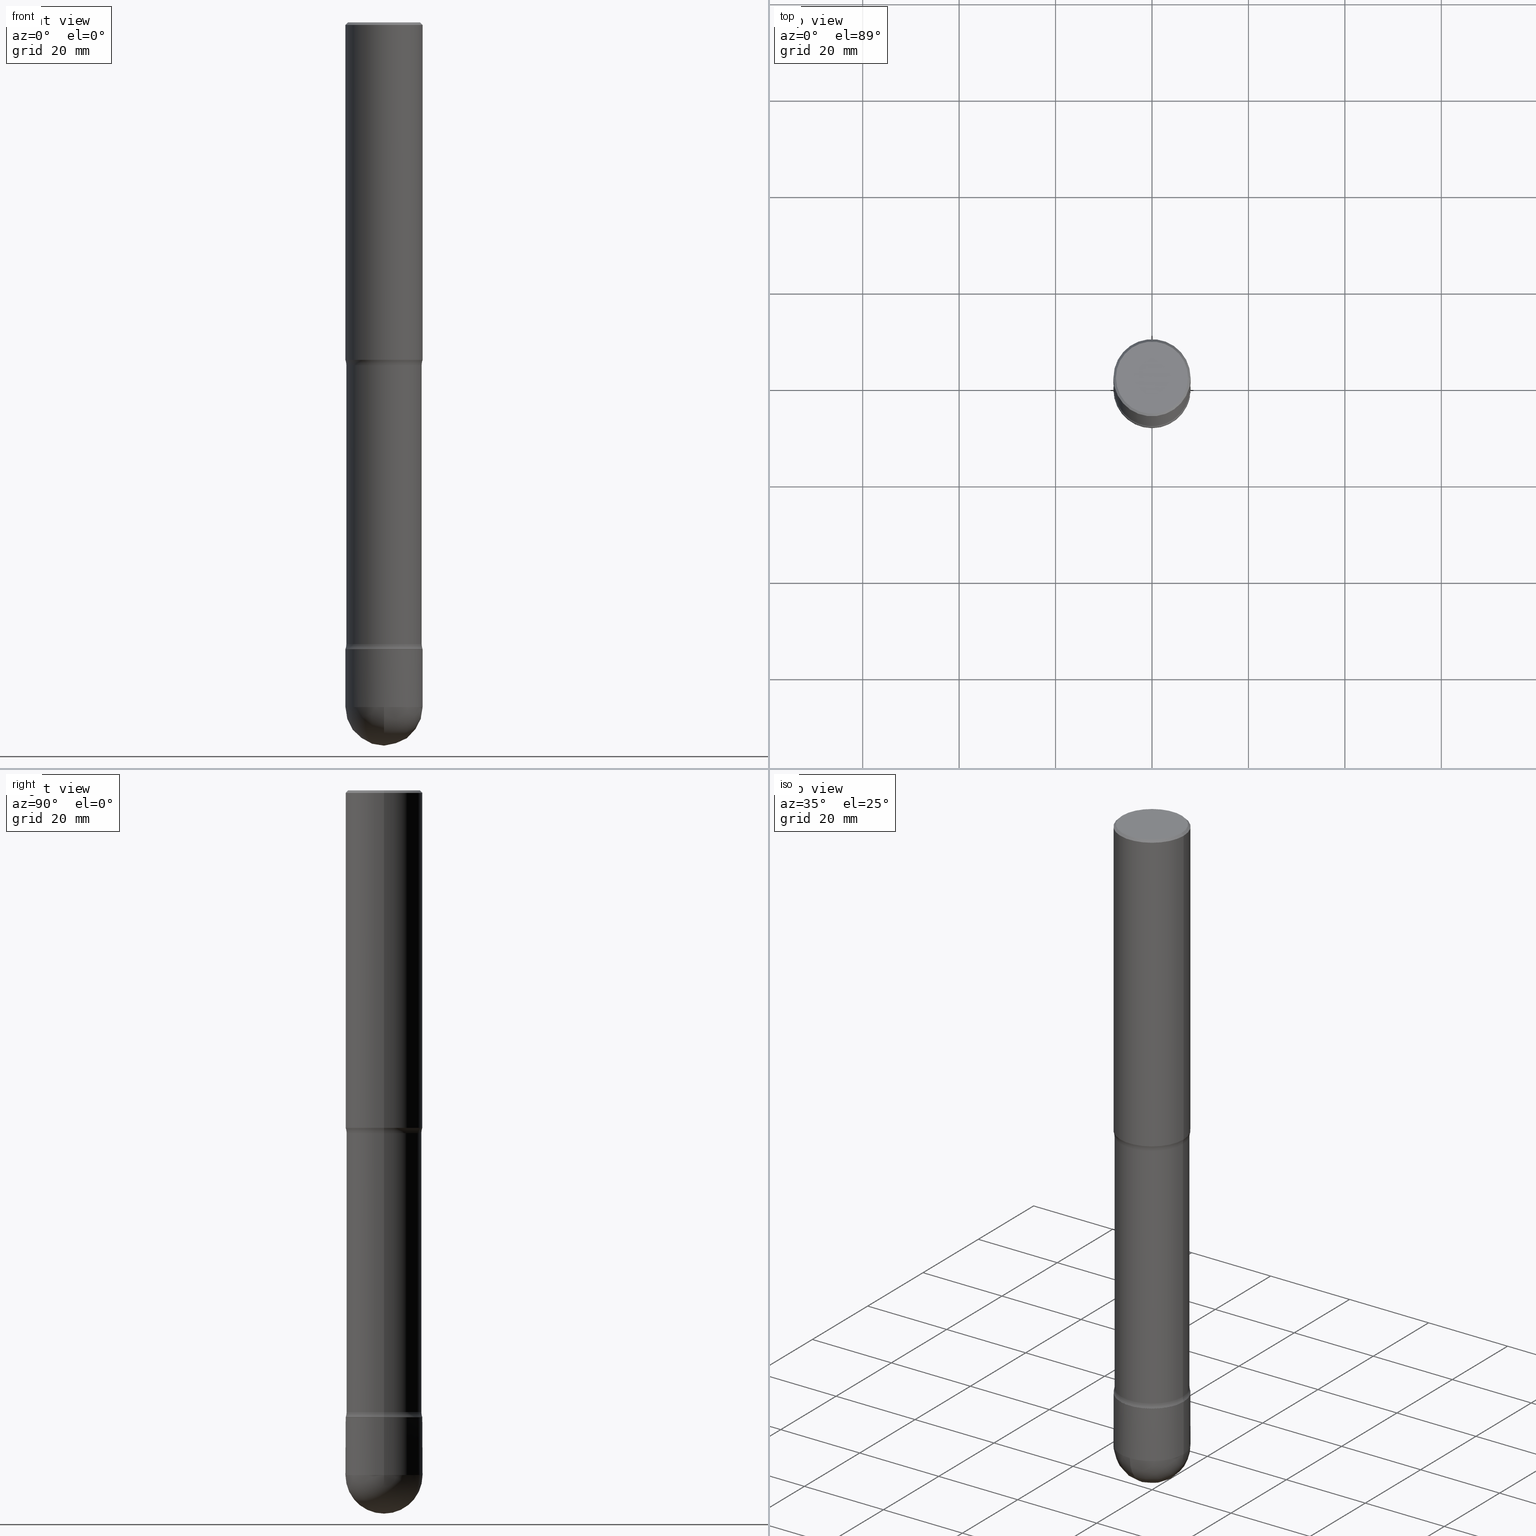
[diagram: canonical four-view strip — front | top / right | iso, engineering-drawing reading convention]
A machine part, canonical four-view strip (front | top / right | iso — engineering-drawing reading convention). The complete STEP part file that produces these views, byte-faithful:
ISO-10303-21;
HEADER;
FILE_DESCRIPTION (( 'STEP AP203' ),
    '1' );
FILE_NAME ('44585.STEP',
    '2024-02-29T19:25:29',
    ( '' ),
    ( '' ),
    'SwSTEP 2.0',
    'SolidWorks 2023',
    '' );
FILE_SCHEMA (( 'CONFIG_CONTROL_DESIGN' ));
ENDSEC;

DATA;
#1 = VERTEX_POINT ( 'NONE', #215 ) ;
#2 = DIRECTION ( 'NONE',  ( -1.000000000000000000, 6.982962677686265922E-15, -4.876176775795935793E-29 ) ) ;
#3 = EDGE_CURVE ( 'NONE', #391, #229, #532, .T. ) ;
#4 = DIRECTION ( 'NONE',  ( -1.000000000000000000, 6.982962677686266711E-15, 0.000000000000000000 ) ) ;
#5 = CIRCLE ( 'NONE', #354, 0.3148173271255955141 ) ;
#6 = CARTESIAN_POINT ( 'NONE',  ( 4.890937612370354609E-31, -6.982962677686407473E-17, -0.02000000000000033348 ) ) ;
#7 = ADVANCED_FACE ( 'NONE', ( #566 ), #486, .T. ) ;
#8 = AXIS2_PLACEMENT_3D ( 'NONE', #117, #564, #245 ) ;
#9 = AXIS2_PLACEMENT_3D ( 'NONE', #412, #377, #283 ) ;
#10 = DIRECTION ( 'NONE',  ( 1.000000000000000000, 0.000000000000000000, 0.000000000000000000 ) ) ;
#11 = PRODUCT_DEFINITION ( 'UNKNOWN', '', #420, #179 ) ;
#12 = ORIENTED_EDGE ( 'NONE', *, *, #88, .T. ) ;
#13 = APPROVAL_DATE_TIME ( #405, #181 ) ;
#14 = ORIENTED_EDGE ( 'NONE', *, *, #42, .F. ) ;
#15 = DIRECTION ( 'NONE',  ( -1.000000000000000000, 6.982962677686267499E-15, -4.876176775795936353E-29 ) ) ;
#16 = CIRCLE ( 'NONE', #496, 0.3144499999999990081 ) ;
#17 = CIRCLE ( 'NONE', #182, 0.3149499999999990640 ) ;
#18 = PRODUCT_DEFINITION_SHAPE ( 'NONE', 'NONE',  #11 ) ;
#19 = SECURITY_CLASSIFICATION ( '', '', #90 ) ;
#20 = ORIENTED_EDGE ( 'NONE', *, *, #273, .T. ) ;
#21 = CARTESIAN_POINT ( 'NONE',  ( -0.3144499999999990081, -1.563350274172963988E-14, -5.118099999999999206 ) ) ;
#22 = CARTESIAN_POINT ( 'NONE',  ( -0.3074499999999993349, -1.572283876507846399E-14, -5.118099999999999206 ) ) ;
#23 = EDGE_CURVE ( 'NONE', #515, #36, #142, .T. ) ;
#24 = ORIENTED_EDGE ( 'NONE', *, *, #488, .T. ) ;
#25 = LINE ( 'NONE', #383, #30 ) ;
#26 = ORIENTED_EDGE ( 'NONE', *, *, #481, .F. ) ;
#27 = CARTESIAN_POINT ( 'NONE',  ( 0.3074499999999993349, -1.997901074974795605E-14, -5.118099999999999206 ) ) ;
#28 = DIRECTION ( 'NONE',  ( 2.445468806185136597E-29, -3.491481338843145583E-15, -1.000000000000000000 ) ) ;
#29 = VECTOR ( 'NONE', #506, 39.37007874015748143 ) ;
#30 = VECTOR ( 'NONE', #328, 39.37007874015748143 ) ;
#31 = ORIENTED_EDGE ( 'NONE', *, *, #439, .T. ) ;
#32 = CARTESIAN_POINT ( 'NONE',  ( 6.843758914944387642E-29, -9.771073946490062515E-15, -2.798546805273080640 ) ) ;
#33 = ADVANCED_FACE ( 'NONE', ( #562 ), #85, .F. ) ;
#34 = CARTESIAN_POINT ( 'NONE',  ( 0.3149499999999990085, -2.089380991493860711E-14, -5.590549999999999464 ) ) ;
#35 = CARTESIAN_POINT ( 'NONE',  ( 6.739467482965618232E-29, -9.622173421717824390E-15, -2.755900000000000016 ) ) ;
#36 = VERTEX_POINT ( 'NONE', #352 ) ;
#37 = CARTESIAN_POINT ( 'NONE',  ( 1.251615389693614574E-28, -1.786975064033310244E-14, -5.118099999999999206 ) ) ;
#38 = DIRECTION ( 'NONE',  ( -2.445468806185136597E-29, 3.491481338843145583E-15, 1.000000000000000000 ) ) ;
#39 = FACE_OUTER_BOUND ( 'NONE', #111, .T. ) ;
#40 = ORIENTED_EDGE ( 'NONE', *, *, #138, .F. ) ;
#41 = ADVANCED_FACE ( 'NONE', ( #440 ), #274, .T. ) ;
#42 = EDGE_CURVE ( 'NONE', #266, #51, #345, .T. ) ;
#43 = CARTESIAN_POINT ( 'NONE',  ( 6.843758914944387642E-29, -9.771073946490062515E-15, -2.798546805273080640 ) ) ;
#44 = CARTESIAN_POINT ( 'NONE',  ( -0.4324499999999873445, -6.751291736524724343E-15, -2.798546805273080640 ) ) ;
#45 = ORIENTED_EDGE ( 'NONE', *, *, #218, .T. ) ;
#46 = TOROIDAL_SURFACE ( 'NONE', #542, 0.4324500000000130462, 0.1250000000000136280 ) ;
#47 = AXIS2_PLACEMENT_3D ( 'NONE', #384, #244, #95 ) ;
#48 = CARTESIAN_POINT ( 'NONE',  ( 1.241186246495737521E-28, -1.772085011556086274E-14, -5.075453194726918582 ) ) ;
#49 = ORIENTED_EDGE ( 'NONE', *, *, #70, .F. ) ;
#50 = EDGE_CURVE ( 'NONE', #518, #394, #399, .T. ) ;
#51 = VERTEX_POINT ( 'NONE', #424 ) ;
#52 = CYLINDRICAL_SURFACE ( 'NONE', #221, 0.3074499999999993349 ) ;
#53 = ORIENTED_EDGE ( 'NONE', *, *, #500, .T. ) ;
#54 = AXIS2_PLACEMENT_3D ( 'NONE', #395, #392, #349 ) ;
#55 = ADVANCED_FACE ( 'NONE', ( #203 ), #46, .F. ) ;
#56 = ADVANCED_FACE ( 'NONE', ( #259 ), #311, .T. ) ;
#57 = EDGE_CURVE ( 'NONE', #36, #515, #312, .T. ) ;
#58 = CALENDAR_DATE ( 2024, 29, 2 ) ;
#59 = CC_DESIGN_DATE_AND_TIME_ASSIGNMENT ( #490, #108, ( #11 ) ) ;
#60 = CIRCLE ( 'NONE', #9, 0.3149499999999997302 ) ;
#61 = CIRCLE ( 'NONE', #47, 0.3148173271255955141 ) ;
#62 = EDGE_LOOP ( 'NONE', ( #14, #246, #217, #447 ) ) ;
#63 = APPROVAL_STATUS ( 'not_yet_approved' ) ;
#64 = EDGE_CURVE ( 'NONE', #107, #344, #386, .T. ) ;
#65 = ORIENTED_EDGE ( 'NONE', *, *, #77, .F. ) ;
#66 = COORDINATED_UNIVERSAL_TIME_OFFSET ( 5, 0, .BEHIND. ) ;
#67 = FACE_OUTER_BOUND ( 'NONE', #428, .T. ) ;
#68 = ORIENTED_EDGE ( 'NONE', *, *, #131, .F. ) ;
#69 = DIRECTION ( 'NONE',  ( -1.000000000000000000, 6.982962677686266711E-15, -4.883557194083112901E-29 ) ) ;
#70 = EDGE_CURVE ( 'NONE', #391, #515, #453, .T. ) ;
#71 = AXIS2_PLACEMENT_3D ( 'NONE', #320, #222, #279 ) ;
#72 = DIRECTION ( 'NONE',  ( -1.000000000000000000, 6.860497997771527618E-15, 0.000000000000000000 ) ) ;
#73 = APPROVAL_STATUS ( 'not_yet_approved' ) ;
#74 = DIRECTION ( 'NONE',  ( -1.000000000000000000, 6.982962677686267499E-15, -4.883557194083113462E-29 ) ) ;
#75 = CARTESIAN_POINT ( 'NONE',  ( 0.3149499999999998967, -2.003046448473124620E-14, -5.118099999999999206 ) ) ;
#76 = ORIENTED_EDGE ( 'NONE', *, *, #104, .T. ) ;
#77 = EDGE_CURVE ( 'NONE', #322, #370, #359, .T. ) ;
#78 = FACE_OUTER_BOUND ( 'NONE', #336, .T. ) ;
#79 = CARTESIAN_POINT ( 'NONE',  ( 0.3149500000000000632, -7.006715368645486812E-15, -2.755900000000000016 ) ) ;
#80 = DIRECTION ( 'NONE',  ( 1.000000000000000000, -6.982962677686266711E-15, 4.876176775795935793E-29 ) ) ;
#81 = DIRECTION ( 'NONE',  ( -1.000000000000000000, 6.860497997771538662E-15, 0.000000000000000000 ) ) ;
#82 = VECTOR ( 'NONE', #173, 39.37007874015748143 ) ;
#83 = AXIS2_PLACEMENT_3D ( 'NONE', #499, #287, #456 ) ;
#84 = ORIENTED_EDGE ( 'NONE', *, *, #526, .F. ) ;
#85 = PLANE ( 'NONE',  #417 ) ;
#86 = CARTESIAN_POINT ( 'NONE',  ( 0.3149499999999997302, -2.230543471175006266E-15, -0.02000000000000033348 ) ) ;
#87 = LINE ( 'NONE', #252, #400 ) ;
#88 = EDGE_CURVE ( 'NONE', #370, #284, #468, .T. ) ;
#89 = EDGE_LOOP ( 'NONE', ( #191, #435, #497, #65 ) ) ;
#90 = SECURITY_CLASSIFICATION_LEVEL ( 'unclassified' ) ;
#91 =( NAMED_UNIT ( * ) SI_UNIT ( $, .STERADIAN. ) SOLID_ANGLE_UNIT ( ) );
#92 = DIRECTION ( 'NONE',  ( 2.445468806185136597E-29, -3.491481338843145583E-15, -1.000000000000000000 ) ) ;
#93 = ORIENTED_EDGE ( 'NONE', *, *, #334, .F. ) ;
#94 = CARTESIAN_POINT ( 'NONE',  ( 4.890937612370354609E-31, -6.982962677686407473E-17, -0.02000000000000033348 ) ) ;
#95 = DIRECTION ( 'NONE',  ( -1.000000000000000000, 6.982962677686265922E-15, 0.000000000000000000 ) ) ;
#96 = CYLINDRICAL_SURFACE ( 'NONE', #106, 0.3074499999999993349 ) ;
#97 = EDGE_LOOP ( 'NONE', ( #410, #503, #26, #176 ) ) ;
#98 = CLOSED_SHELL ( 'NONE', ( #321, #195, #235, #357, #33 ) ) ;
#99 = AXIS2_PLACEMENT_3D ( 'NONE', #546, #69, #502 ) ;
#100 = ORIENTED_EDGE ( 'NONE', *, *, #149, .F. ) ;
#101 = EDGE_CURVE ( 'NONE', #394, #476, #199, .T. ) ;
#102 = DIRECTION ( 'NONE',  ( 2.445468806185136597E-29, -3.491481338843145583E-15, -1.000000000000000000 ) ) ;
#103 = APPLICATION_PROTOCOL_DEFINITION ( 'international standard', 'config_control_design', 1994, #362 ) ;
#104 = EDGE_CURVE ( 'NONE', #284, #476, #432, .T. ) ;
#105 = PERSON_AND_ORGANIZATION_ROLE ( 'design_owner' ) ;
#106 = AXIS2_PLACEMENT_3D ( 'NONE', #119, #292, #196 ) ;
#107 = VERTEX_POINT ( 'NONE', #459 ) ;
#108 = DATE_TIME_ROLE ( 'creation_date' ) ;
#109 = CC_DESIGN_PERSON_AND_ORGANIZATION_ASSIGNMENT ( #285, #371, ( #420 ) ) ;
#110 = CARTESIAN_POINT ( 'NONE',  ( 0.4324500000000130462, -2.068767247469725245E-14, -5.075453194726918582 ) ) ;
#111 = EDGE_LOOP ( 'NONE', ( #387, #549 ) ) ;
#112 = EDGE_CURVE ( 'NONE', #194, #266, #16, .T. ) ;
#113 = EDGE_CURVE ( 'NONE', #344, #515, #517, .T. ) ;
#114 = CIRCLE ( 'NONE', #445, 0.3149499999999997302 ) ;
#115 = ORIENTED_EDGE ( 'NONE', *, *, #64, .F. ) ;
#116 = SPHERICAL_SURFACE ( 'NONE', #99, 0.3149499999999997302 ) ;
#117 = CARTESIAN_POINT ( 'NONE',  ( 1.251615389693614574E-28, -1.786975064033310244E-14, -5.118099999999999206 ) ) ;
#118 = EDGE_LOOP ( 'NONE', ( #170, #233, #277, #40 ) ) ;
#119 = CARTESIAN_POINT ( 'NONE',  ( 1.251615389693614574E-28, -1.786975064033310244E-14, -5.118099999999999206 ) ) ;
#120 = CARTESIAN_POINT ( 'NONE',  ( 0.000000000000000000, 0.000000000000000000, 0.000000000000000000 ) ) ;
#121 = VERTEX_POINT ( 'NONE', #164 ) ;
#122 = DIRECTION ( 'NONE',  ( -1.000000000000000000, 6.982962677686262766E-15, 0.000000000000000000 ) ) ;
#123 = DIRECTION ( 'NONE',  ( 1.000000000000000000, -6.982962677686261977E-15, 0.000000000000000000 ) ) ;
#124 = AXIS2_PLACEMENT_3D ( 'NONE', #463, #347, #81 ) ;
#125 = AXIS2_PLACEMENT_3D ( 'NONE', #159, #350, #163 ) ;
#126 = ORIENTED_EDGE ( 'NONE', *, *, #50, .F. ) ;
#127 = PLANE ( 'NONE',  #411 ) ;
#128 = DIRECTION ( 'NONE',  ( -1.000000000000000000, 6.982962677686265922E-15, -4.876176775795935793E-29 ) ) ;
#129 = ORIENTED_EDGE ( 'NONE', *, *, #101, .T. ) ;
#130 = DIRECTION ( 'NONE',  ( -2.445468806185136597E-29, 3.491481338843145583E-15, 1.000000000000000000 ) ) ;
#131 = EDGE_CURVE ( 'NONE', #236, #36, #415, .T. ) ;
#132 = DIRECTION ( 'NONE',  ( 1.000000000000000000, -6.982962677686266711E-15, 0.000000000000000000 ) ) ;
#133 = DIRECTION ( 'NONE',  ( -1.000000000000000000, 6.982962677686265922E-15, 0.000000000000000000 ) ) ;
#134 = EDGE_LOOP ( 'NONE', ( #451, #307, #213, #129, #565 ) ) ;
#135 = CARTESIAN_POINT ( 'NONE',  ( 1.251615389693614574E-28, -1.786975064033310244E-14, -5.118099999999999206 ) ) ;
#136 = ORIENTED_EDGE ( 'NONE', *, *, #23, .F. ) ;
#137 = LOCAL_TIME ( 14, 25, 29.00000000000000000, #66 ) ;
#138 = EDGE_CURVE ( 'NONE', #194, #431, #87, .T. ) ;
#139 = DIRECTION ( 'NONE',  ( 2.445468806185136597E-29, -3.491481338843145583E-15, -1.000000000000000000 ) ) ;
#140 = EDGE_CURVE ( 'NONE', #121, #322, #114, .T. ) ;
#141 = PERSON_AND_ORGANIZATION_ROLE ( 'creator' ) ;
#142 = CIRCLE ( 'NONE', #54, 0.3149500000000000632 ) ;
#143 = VECTOR ( 'NONE', #289, 39.37007874015748143 ) ;
#144 = CARTESIAN_POINT ( 'NONE',  ( -0.2949499999999996569, 2.059624841783562091E-15, -1.438228340021009676E-29 ) ) ;
#145 = ADVANCED_FACE ( 'NONE', ( #39 ), #256, .T. ) ;
#146 = CARTESIAN_POINT ( 'NONE',  ( 0.3149499999999990640, -2.006903473567038758E-14, -5.118099999999999206 ) ) ;
#147 = CONICAL_SURFACE ( 'NONE', #243, 0.3144499999999990081, 0.7853981633988427191 ) ;
#148 = LOCAL_TIME ( 14, 25, 29.00000000000000000, #544 ) ;
#149 = EDGE_CURVE ( 'NONE', #431, #51, #5, .T. ) ;
#150 = CARTESIAN_POINT ( 'NONE',  ( 1.364458217214061005E-28, -1.955787124980869236E-14, -5.590549999999999464 ) ) ;
#151 = ADVANCED_FACE ( 'NONE', ( #475 ), #96, .T. ) ;
#152 = APPROVAL_ROLE ( '' ) ;
#153 = DIRECTION ( 'NONE',  ( -2.445468806185136597E-29, 3.491481338843145583E-15, 1.000000000000000000 ) ) ;
#154 = VECTOR ( 'NONE', #381, 39.37007874015748143 ) ;
#155 = CARTESIAN_POINT ( 'NONE',  ( 1.251615389693614574E-28, -1.786975064033310244E-14, -5.118099999999999206 ) ) ;
#156 = ORIENTED_EDGE ( 'NONE', *, *, #57, .T. ) ;
#157 = CALENDAR_DATE ( 2024, 29, 2 ) ;
#158 = DIRECTION ( 'NONE',  ( -2.445468806185136597E-29, 3.491481338843145583E-15, 1.000000000000000000 ) ) ;
#159 = CARTESIAN_POINT ( 'NONE',  ( 1.251615389693614574E-28, -1.786975064033310244E-14, -5.118099999999999206 ) ) ;
#160 = DIRECTION ( 'NONE',  ( 2.445468806185136597E-29, -3.491481338843145583E-15, -1.000000000000000000 ) ) ;
#161 = ORIENTED_EDGE ( 'NONE', *, *, #206, .T. ) ;
#162 = CARTESIAN_POINT ( 'NONE',  ( 0.000000000000000000, 0.000000000000000000, 0.000000000000000000 ) ) ;
#163 = DIRECTION ( 'NONE',  ( -1.000000000000000000, 6.982962677686265922E-15, 0.000000000000000000 ) ) ;
#164 = CARTESIAN_POINT ( 'NONE',  ( 1.442824930378747100E-28, -2.063822817200776423E-14, -5.905499999999998195 ) ) ;
#165 = EDGE_LOOP ( 'NONE', ( #200, #76 ) ) ;
#166 = FACE_OUTER_BOUND ( 'NONE', #474, .T. ) ;
#167 = DIRECTION ( 'NONE',  ( -2.445468806185136877E-29, 3.491481338843145188E-15, 1.000000000000000000 ) ) ;
#168 = AXIS2_PLACEMENT_3D ( 'NONE', #35, #28, #309 ) ;
#169 = CIRCLE ( 'NONE', #442, 0.3149499999999990085 ) ;
#170 = ORIENTED_EDGE ( 'NONE', *, *, #552, .F. ) ;
#171 = DIRECTION ( 'NONE',  ( -1.000000000000000000, 6.982962677686268288E-15, 0.000000000000000000 ) ) ;
#172 = DIRECTION ( 'NONE',  ( -2.438088387897960049E-29, 3.491481338843145188E-15, 1.000000000000000000 ) ) ;
#173 = DIRECTION ( 'NONE',  ( 0.7071067811865426878, -7.319954787623238690E-15, -0.7071067811865523467 ) ) ;
#174 = EDGE_LOOP ( 'NONE', ( #375, #324, #31, #20 ) ) ;
#175 = DIRECTION ( 'NONE',  ( -1.000000000000000000, 6.982962677686265922E-15, -4.883557194083112340E-29 ) ) ;
#176 = ORIENTED_EDGE ( 'NONE', *, *, #316, .F. ) ;
#177 = EDGE_CURVE ( 'NONE', #476, #284, #17, .T. ) ;
#178 = AXIS2_PLACEMENT_3D ( 'NONE', #201, #538, #413 ) ;
#179 = DESIGN_CONTEXT ( 'detailed design', #239, 'design' ) ;
#180 = MANIFOLD_SOLID_BREP ( 'Body-Move/Copy2[2]', #441 ) ;
#181 = APPROVAL ( #63, 'UNSPECIFIED' ) ;
#182 = AXIS2_PLACEMENT_3D ( 'NONE', #373, #158, #295 ) ;
#183 = CARTESIAN_POINT ( 'NONE',  ( 6.843758914944387642E-29, -9.771073946490062515E-15, -2.798546805273080640 ) ) ;
#184 = CALENDAR_DATE ( 2024, 29, 2 ) ;
#185 = LINE ( 'NONE', #22, #143 ) ;
#186 = ADVANCED_FACE ( 'NONE', ( #540 ), #330, .F. ) ;
#187 = DIRECTION ( 'NONE',  ( -1.000000000000000000, 6.982962677686267499E-15, -4.876176775795936353E-29 ) ) ;
#188 = AXIS2_PLACEMENT_3D ( 'NONE', #339, #505, #122 ) ;
#189 = ORIENTED_EDGE ( 'NONE', *, *, #210, .F. ) ;
#190 = CALENDAR_DATE ( 2024, 29, 2 ) ;
#191 = ORIENTED_EDGE ( 'NONE', *, *, #140, .F. ) ;
#192 = DATE_AND_TIME ( #157, #148 ) ;
#193 = DIRECTION ( 'NONE',  ( 1.000000000000000000, -6.982962677686268288E-15, 0.000000000000000000 ) ) ;
#194 = VERTEX_POINT ( 'NONE', #367 ) ;
#195 = ADVANCED_FACE ( 'NONE', ( #414 ), #536, .T. ) ;
#196 = DIRECTION ( 'NONE',  ( -1.000000000000000000, 6.982962677686269077E-15, 0.000000000000000000 ) ) ;
#197 = CARTESIAN_POINT ( 'NONE',  ( 0.3074499999999996125, -1.585522214044031702E-14, -5.075453194726919470 ) ) ;
#198 = AXIS2_PLACEMENT_3D ( 'NONE', #150, #419, #551 ) ;
#199 = LINE ( 'NONE', #293, #267 ) ;
#200 = ORIENTED_EDGE ( 'NONE', *, *, #177, .T. ) ;
#201 = CARTESIAN_POINT ( 'NONE',  ( 1.241186246495737745E-28, -1.772085011556086905E-14, -5.075453194726919470 ) ) ;
#202 = ORIENTED_EDGE ( 'NONE', *, *, #526, .T. ) ;
#203 = FACE_OUTER_BOUND ( 'NONE', #174, .T. ) ;
#204 =( CONVERSION_BASED_UNIT ( 'INCH', #433 ) LENGTH_UNIT ( ) NAMED_UNIT ( #436 ) );
#205 = DIRECTION ( 'NONE',  ( -6.982962677686266711E-15, -1.000000000000000000, 3.491481338843145583E-15 ) ) ;
#206 = EDGE_CURVE ( 'NONE', #107, #469, #487, .T. ) ;
#207 = CARTESIAN_POINT ( 'NONE',  ( 2.195792613998564404E-15, 0.3144499999999811335, -5.118100000000000094 ) ) ;
#208 = ORIENTED_EDGE ( 'NONE', *, *, #177, .F. ) ;
#209 = DIRECTION ( 'NONE',  ( -1.000000000000000000, 6.982962677686266711E-15, 0.000000000000000000 ) ) ;
#210 = EDGE_CURVE ( 'NONE', #469, #107, #498, .T. ) ;
#211 = FACE_OUTER_BOUND ( 'NONE', #134, .T. ) ;
#212 = AXIS2_PLACEMENT_3D ( 'NONE', #512, #519, #338 ) ;
#213 = ORIENTED_EDGE ( 'NONE', *, *, #50, .T. ) ;
#214 = AXIS2_PLACEMENT_3D ( 'NONE', #325, #443, #10 ) ;
#215 = CARTESIAN_POINT ( 'NONE',  ( -0.3074499999999996125, -1.557393824030622744E-14, -5.075453194726919470 ) ) ;
#216 = CARTESIAN_POINT ( 'NONE',  ( 1.251615389693614574E-28, -1.786975064033310244E-14, -5.118099999999999206 ) ) ;
#217 = ORIENTED_EDGE ( 'NONE', *, *, #138, .T. ) ;
#218 = EDGE_CURVE ( 'NONE', #431, #522, #418, .T. ) ;
#219 = DIRECTION ( 'NONE',  ( 2.445468806185136597E-29, -3.491481338843145583E-15, -1.000000000000000000 ) ) ;
#220 = AXIS2_PLACEMENT_3D ( 'NONE', #43, #264, #171 ) ;
#221 = AXIS2_PLACEMENT_3D ( 'NONE', #216, #563, #260 ) ;
#222 = DIRECTION ( 'NONE',  ( -1.000000000000000000, 7.105427357601001070E-15, -4.926315508542082329E-29 ) ) ;
#223 = EDGE_CURVE ( 'NONE', #344, #236, #60, .T. ) ;
#224 = APPROVAL_STATUS ( 'not_yet_approved' ) ;
#225 = AXIS2_PLACEMENT_3D ( 'NONE', #491, #333, #15 ) ;
#226 = EDGE_CURVE ( 'NONE', #391, #522, #337, .T. ) ;
#227 = ORIENTED_EDGE ( 'NONE', *, *, #113, .F. ) ;
#228 = DIRECTION ( 'NONE',  ( 2.445468806185136597E-29, -3.491481338843145583E-15, -1.000000000000000000 ) ) ;
#229 = VERTEX_POINT ( 'NONE', #452 ) ;
#230 = APPROVAL_ROLE ( '' ) ;
#231 = CIRCLE ( 'NONE', #561, 0.3074499999999991129 ) ;
#232 = AXIS2_PLACEMENT_3D ( 'NONE', #250, #421, #458 ) ;
#233 = ORIENTED_EDGE ( 'NONE', *, *, #42, .T. ) ;
#234 = CARTESIAN_POINT ( 'NONE',  ( -0.3149499999999997302, 2.129454468560423812E-15, -0.02000000000000033348 ) ) ;
#235 = ADVANCED_FACE ( 'NONE', ( #329 ), #116, .T. ) ;
#236 = VERTEX_POINT ( 'NONE', #234 ) ;
#237 = DATE_AND_TIME ( #494, #355 ) ;
#238 = DIRECTION ( 'NONE',  ( 2.445468806185136877E-29, -3.491481338843145188E-15, -1.000000000000000000 ) ) ;
#239 = APPLICATION_CONTEXT ( 'configuration controlled 3d designs of mechanical parts and assemblies' ) ;
#240 = ORIENTED_EDGE ( 'NONE', *, *, #488, .F. ) ;
#241 = CARTESIAN_POINT ( 'NONE',  ( 1.251615389693614574E-28, -1.786975064033310244E-14, -5.118099999999999206 ) ) ;
#242 = VECTOR ( 'NONE', #356, 39.37007874015748854 ) ;
#243 = AXIS2_PLACEMENT_3D ( 'NONE', #241, #153, #193 ) ;
#244 = DIRECTION ( 'NONE',  ( 2.445468806185136597E-29, -3.491481338843145583E-15, -1.000000000000000000 ) ) ;
#245 = DIRECTION ( 'NONE',  ( 1.000000000000000000, -6.982962677686273021E-15, 0.000000000000000000 ) ) ;
#246 = ORIENTED_EDGE ( 'NONE', *, *, #112, .F. ) ;
#247 = DATE_AND_TIME ( #190, #446 ) ;
#248 = CARTESIAN_POINT ( 'NONE',  ( 1.367151563441831346E-28, -1.951930099886954466E-14, -5.590549999999999464 ) ) ;
#249 = CC_DESIGN_PERSON_AND_ORGANIZATION_ASSIGNMENT ( #529, #105, ( #280 ) ) ;
#250 = CARTESIAN_POINT ( 'NONE',  ( 1.251615389693614574E-28, -1.786975064033310244E-14, -5.118099999999999206 ) ) ;
#251 = CYLINDRICAL_SURFACE ( 'NONE', #533, 0.3149499999999990640 ) ;
#252 = CARTESIAN_POINT ( 'NONE',  ( 0.3144499999999990081, -2.006554325433154299E-14, -5.118099999999999206 ) ) ;
#253 = ORIENTED_EDGE ( 'NONE', *, *, #409, .F. ) ;
#254 = DIRECTION ( 'NONE',  ( -2.445468806185136597E-29, 3.491481338843145583E-15, 1.000000000000000000 ) ) ;
#255 = CARTESIAN_POINT ( 'NONE',  ( 2.199284095337421611E-15, 0.3149499999999798017, -5.590550000000000352 ) ) ;
#256 = PLANE ( 'NONE',  #378 ) ;
#257 = APPROVAL_DATE_TIME ( #237, #471 ) ;
#258 = ORIENTED_EDGE ( 'NONE', *, *, #206, .F. ) ;
#259 = FACE_OUTER_BOUND ( 'NONE', #310, .T. ) ;
#260 = DIRECTION ( 'NONE',  ( -1.000000000000000000, 6.982962677686269077E-15, 0.000000000000000000 ) ) ;
#261 = CARTESIAN_POINT ( 'NONE',  ( 1.364458217214061005E-28, -1.955787124980869236E-14, -5.590549999999999464 ) ) ;
#262 = AXIS2_PLACEMENT_3D ( 'NONE', #162, #457, #187 ) ;
#263 = ORIENTED_EDGE ( 'NONE', *, *, #70, .T. ) ;
#264 = DIRECTION ( 'NONE',  ( 2.445468806185136597E-29, -3.491481338843145583E-15, -1.000000000000000000 ) ) ;
#265 = CARTESIAN_POINT ( 'NONE',  ( -0.3149499999999990085, -1.645667147332489546E-14, -5.590549999999999464 ) ) ;
#266 = VERTEX_POINT ( 'NONE', #21 ) ;
#267 = VECTOR ( 'NONE', #343, 39.37007874015748143 ) ;
#268 = AXIS2_PLACEMENT_3D ( 'NONE', #513, #205, #313 ) ;
#269 = ADVANCED_FACE ( 'NONE', ( #78 ), #524, .F. ) ;
#270 = CC_DESIGN_PERSON_AND_ORGANIZATION_ASSIGNMENT ( #470, #294, ( #420 ) ) ;
#271 = CYLINDRICAL_SURFACE ( 'NONE', #477, 0.3149499999999990640 ) ;
#272 = ADVANCED_BREP_SHAPE_REPRESENTATION ( '44585', ( #368, #180, #214 ), #379 ) ;
#273 = EDGE_CURVE ( 'NONE', #1, #522, #545, .T. ) ;
#274 = CONICAL_SURFACE ( 'NONE', #444, 0.3149499999999997302, 0.7853981633974415066 ) ;
#275 = AXIS2_PLACEMENT_3D ( 'NONE', #408, #326, #74 ) ;
#276 = APPROVAL_PERSON_ORGANIZATION ( #509, #471, #152 ) ;
#277 = ORIENTED_EDGE ( 'NONE', *, *, #396, .T. ) ;
#278 = DIRECTION ( 'NONE',  ( -1.000000000000000000, 6.982962677686267499E-15, -4.883557194083113462E-29 ) ) ;
#279 = DIRECTION ( 'NONE',  ( -7.105427357601000281E-15, -1.000000000000000000, 0.000000000000000000 ) ) ;
#280 = PRODUCT ( '44585', '44585', '', ( #485 ) ) ;
#281 = EDGE_LOOP ( 'NONE', ( #385, #560, #84, #126 ) ) ;
#282 = PERSON_AND_ORGANIZATION ( #401, #403 ) ;
#283 = DIRECTION ( 'NONE',  ( -1.000000000000000000, 6.982962677686266711E-15, 0.000000000000000000 ) ) ;
#284 = VERTEX_POINT ( 'NONE', #495 ) ;
#285 = PERSON_AND_ORGANIZATION ( #401, #403 ) ;
#286 = AXIS2_PLACEMENT_3D ( 'NONE', #248, #130, #308 ) ;
#287 = DIRECTION ( 'NONE',  ( 2.445468806185136597E-29, -3.491481338843145583E-15, -1.000000000000000000 ) ) ;
#288 = CIRCLE ( 'NONE', #232, 0.3144499999999990081 ) ;
#289 = DIRECTION ( 'NONE',  ( 2.445468806185136877E-29, -3.491481338843145188E-15, -1.000000000000000000 ) ) ;
#290 = CC_DESIGN_SECURITY_CLASSIFICATION ( #19, ( #420 ) ) ;
#291 = ORIENTED_EDGE ( 'NONE', *, *, #481, .T. ) ;
#292 = DIRECTION ( 'NONE',  ( 2.445468806185136597E-29, -3.491481338843145583E-15, -1.000000000000000000 ) ) ;
#293 = CARTESIAN_POINT ( 'NONE',  ( 0.3149499999999990640, -2.199284095337283166E-15, 1.535751875536925365E-29 ) ) ;
#294 = PERSON_AND_ORGANIZATION_ROLE ( 'design_supplier' ) ;
#295 = DIRECTION ( 'NONE',  ( 1.000000000000000000, -6.982962677686273021E-15, 0.000000000000000000 ) ) ;
#296 = CARTESIAN_POINT ( 'NONE',  ( 0.3149499999999997302, -2.230543471175006266E-15, -0.02000000000000033348 ) ) ;
#297 = ORIENTED_EDGE ( 'NONE', *, *, #101, .F. ) ;
#298 = ADVANCED_FACE ( 'NONE', ( #504 ), #147, .T. ) ;
#299 = PERSON_AND_ORGANIZATION ( #401, #403 ) ;
#300 = AXIS2_PLACEMENT_3D ( 'NONE', #94, #219, #209 ) ;
#301 = AXIS2_PLACEMENT_3D ( 'NONE', #110, #372, #72 ) ;
#302 = APPROVAL_PERSON_ORGANIZATION ( #530, #181, #361 ) ;
#303 = DIRECTION ( 'NONE',  ( -1.000000000000000000, 6.982962677686268288E-15, 0.000000000000000000 ) ) ;
#304 = ORIENTED_EDGE ( 'NONE', *, *, #500, .F. ) ;
#305 = CARTESIAN_POINT ( 'NONE',  ( 2.059624841783562091E-15, 0.2949499999999996569, -1.025543908401684169E-15 ) ) ;
#306 = CARTESIAN_POINT ( 'NONE',  ( 1.251525560990883735E-28, -1.786846812452883327E-14, -5.117732672874403477 ) ) ;
#307 = ORIENTED_EDGE ( 'NONE', *, *, #327, .T. ) ;
#308 = DIRECTION ( 'NONE',  ( 1.000000000000000000, -6.982962677686261977E-15, 0.000000000000000000 ) ) ;
#309 = DIRECTION ( 'NONE',  ( -1.000000000000000000, 6.982962677686268288E-15, 0.000000000000000000 ) ) ;
#310 = EDGE_LOOP ( 'NONE', ( #227, #489, #351, #136 ) ) ;
#311 = CYLINDRICAL_SURFACE ( 'NONE', #541, 0.3149499999999998967 ) ;
#312 = CIRCLE ( 'NONE', #168, 0.3149500000000000632 ) ;
#313 = DIRECTION ( 'NONE',  ( 1.000000000000000000, -6.982962677686262766E-15, 0.000000000000000000 ) ) ;
#314 = ORIENTED_EDGE ( 'NONE', *, *, #226, .F. ) ;
#315 = CARTESIAN_POINT ( 'NONE',  ( -0.3144499999999990081, -1.563544900773547130E-14, -5.118099999999999206 ) ) ;
#316 = EDGE_CURVE ( 'NONE', #469, #236, #25, .T. ) ;
#317 = CIRCLE ( 'NONE', #71, 0.3149499999999997302 ) ;
#318 = ADVANCED_FACE ( 'NONE', ( #450 ), #323, .F. ) ;
#319 = LOCAL_TIME ( 14, 25, 29.00000000000000000, #358 ) ;
#320 = CARTESIAN_POINT ( 'NONE',  ( 1.364458217214061005E-28, -1.955787124980869236E-14, -5.590549999999999464 ) ) ;
#321 = ADVANCED_FACE ( 'NONE', ( #67 ), #271, .T. ) ;
#322 = VERTEX_POINT ( 'NONE', #255 ) ;
#323 = TOROIDAL_SURFACE ( 'NONE', #83, 0.4324500000000130462, 0.1250000000000136280 ) ;
#324 = ORIENTED_EDGE ( 'NONE', *, *, #396, .F. ) ;
#325 = CARTESIAN_POINT ( 'NONE',  ( 0.000000000000000000, 0.000000000000000000, 0.000000000000000000 ) ) ;
#326 = DIRECTION ( 'NONE',  ( 2.445468806185136597E-29, -3.491481338843145583E-15, -1.000000000000000000 ) ) ;
#327 = EDGE_CURVE ( 'NONE', #370, #518, #169, .T. ) ;
#328 = DIRECTION ( 'NONE',  ( -0.7071067811865426878, 2.468850131082206573E-15, -0.7071067811865523467 ) ) ;
#329 = FACE_OUTER_BOUND ( 'NONE', #281, .T. ) ;
#330 = TOROIDAL_SURFACE ( 'NONE', #275, 0.4324499999999873445, 0.1249999999999882455 ) ;
#331 = DIRECTION ( 'NONE',  ( -1.000000000000000000, 6.982962677686265922E-15, 0.000000000000000000 ) ) ;
#332 = EDGE_LOOP ( 'NONE', ( #24, #416, #423, #304 ) ) ;
#333 = DIRECTION ( 'NONE',  ( 2.445468806185136597E-29, -3.491481338843145583E-15, -1.000000000000000000 ) ) ;
#334 = EDGE_CURVE ( 'NONE', #229, #36, #465, .T. ) ;
#335 = CARTESIAN_POINT ( 'NONE',  ( -0.3149499999999990640, 2.237854346276428885E-15, -1.549218606675777912E-29 ) ) ;
#336 = EDGE_LOOP ( 'NONE', ( #49, #240, #535, #156 ) ) ;
#337 = LINE ( 'NONE', #27, #376 ) ;
#338 = DIRECTION ( 'NONE',  ( 1.000000000000000000, -6.982962677686261977E-15, 0.000000000000000000 ) ) ;
#339 = CARTESIAN_POINT ( 'NONE',  ( 1.241186246495737745E-28, -1.772085011556086905E-14, -5.075453194726919470 ) ) ;
#340 = EDGE_LOOP ( 'NONE', ( #348, #263, #407, #93 ) ) ;
#341 = CARTESIAN_POINT ( 'NONE',  ( -2.237854346276293990E-15, -0.3149500000000188815, -5.590549999999997688 ) ) ;
#342 = AXIS2_PLACEMENT_3D ( 'NONE', #44, #472, #132 ) ;
#343 = DIRECTION ( 'NONE',  ( -2.445468806185136877E-29, 3.491481338843145188E-15, 1.000000000000000000 ) ) ;
#344 = VERTEX_POINT ( 'NONE', #86 ) ;
#345 = LINE ( 'NONE', #315, #242 ) ;
#346 = DIRECTION ( 'NONE',  ( 1.000000000000000000, -6.982962677686268288E-15, 0.000000000000000000 ) ) ;
#347 = DIRECTION ( 'NONE',  ( 6.860497997771531562E-15, 1.000000000000000000, -3.491481338843145583E-15 ) ) ;
#348 = ORIENTED_EDGE ( 'NONE', *, *, #3, .F. ) ;
#349 = DIRECTION ( 'NONE',  ( -1.000000000000000000, 6.982962677686268288E-15, 0.000000000000000000 ) ) ;
#350 = DIRECTION ( 'NONE',  ( 2.445468806185136597E-29, -3.491481338843145583E-15, -1.000000000000000000 ) ) ;
#351 = ORIENTED_EDGE ( 'NONE', *, *, #131, .T. ) ;
#352 = CARTESIAN_POINT ( 'NONE',  ( -0.3149500000000000632, -7.422889326380534519E-15, -2.755900000000000016 ) ) ;
#353 = DIRECTION ( 'NONE',  ( -1.000000000000000000, 6.982962677686268288E-15, 0.000000000000000000 ) ) ;
#354 = AXIS2_PLACEMENT_3D ( 'NONE', #306, #92, #133 ) ;
#355 = LOCAL_TIME ( 14, 25, 29.00000000000000000, #454 ) ;
#356 = DIRECTION ( 'NONE',  ( -0.7071067811875334508, 7.493145998873916656E-15, 0.7071067811855614726 ) ) ;
#357 = ADVANCED_FACE ( 'NONE', ( #211 ), #251, .T. ) ;
#358 = COORDINATED_UNIVERSAL_TIME_OFFSET ( 5, 0, .BEHIND. ) ;
#359 = CIRCLE ( 'NONE', #523, 0.3149499999999990085 ) ;
#360 = CONICAL_SURFACE ( 'NONE', #525, 0.3144499999999990081, 0.7853981633988427191 ) ;
#361 = APPROVAL_ROLE ( '' ) ;
#362 = APPLICATION_CONTEXT ( 'configuration controlled 3d designs of mechanical parts and assemblies' ) ;
#363 = PERSON_AND_ORGANIZATION ( #401, #403 ) ;
#364 = ORIENTED_EDGE ( 'NONE', *, *, #3, .T. ) ;
#365 = CIRCLE ( 'NONE', #188, 0.3074499999999996125 ) ;
#366 = APPROVAL_PERSON_ORGANIZATION ( #282, #484, #230 ) ;
#367 = CARTESIAN_POINT ( 'NONE',  ( 0.3144499999999990081, -2.006618451223367915E-14, -5.118099999999999206 ) ) ;
#368 = MANIFOLD_SOLID_BREP ( 'Body-Move/Copy2[1]', #98 ) ;
#369 = PRODUCT_RELATED_PRODUCT_CATEGORY ( 'detail', '', ( #280 ) ) ;
#370 = VERTEX_POINT ( 'NONE', #265 ) ;
#371 = PERSON_AND_ORGANIZATION_ROLE ( 'creator' ) ;
#372 = DIRECTION ( 'NONE',  ( 6.860497997771531562E-15, 1.000000000000000000, -3.491481338843145583E-15 ) ) ;
#373 = CARTESIAN_POINT ( 'NONE',  ( 1.251615389693614574E-28, -1.786975064033310244E-14, -5.118099999999999206 ) ) ;
#374 = UNCERTAINTY_MEASURE_WITH_UNIT (LENGTH_MEASURE( 1.000000000000000082E-05 ), #204, 'distance_accuracy_value', 'NONE');
#375 = ORIENTED_EDGE ( 'NONE', *, *, #218, .F. ) ;
#376 = VECTOR ( 'NONE', #238, 39.37007874015748143 ) ;
#377 = DIRECTION ( 'NONE',  ( 2.445468806185136597E-29, -3.491481338843145583E-15, -1.000000000000000000 ) ) ;
#378 = AXIS2_PLACEMENT_3D ( 'NONE', #207, #514, #128 ) ;
#379 =( GEOMETRIC_REPRESENTATION_CONTEXT ( 3 ) GLOBAL_UNCERTAINTY_ASSIGNED_CONTEXT ( ( #374 ) ) GLOBAL_UNIT_ASSIGNED_CONTEXT ( ( #204, #557, #91 ) ) REPRESENTATION_CONTEXT ( 'NONE', 'WORKASPACE' ) );
#380 = FACE_OUTER_BOUND ( 'NONE', #464, .T. ) ;
#381 = DIRECTION ( 'NONE',  ( 2.445468806185136877E-29, -3.491481338843145188E-15, -1.000000000000000000 ) ) ;
#382 = EDGE_LOOP ( 'NONE', ( #100, #45, #543, #404 ) ) ;
#383 = CARTESIAN_POINT ( 'NONE',  ( -0.3149499999999997302, 2.129454468560423812E-15, -0.02000000000000033348 ) ) ;
#384 = CARTESIAN_POINT ( 'NONE',  ( 1.251525560990883735E-28, -1.786846812452883327E-14, -5.117732672874403477 ) ) ;
#385 = ORIENTED_EDGE ( 'NONE', *, *, #492, .F. ) ;
#386 = LINE ( 'NONE', #296, #82 ) ;
#387 = ORIENTED_EDGE ( 'NONE', *, *, #112, .T. ) ;
#388 = AXIS2_PLACEMENT_3D ( 'NONE', #6, #139, #527 ) ;
#389 = CARTESIAN_POINT ( 'NONE',  ( 0.3074499999999991129, -1.183161066101044135E-14, -2.798546805273080640 ) ) ;
#390 = DIRECTION ( 'NONE',  ( 2.445468806185136597E-29, -3.491481338843145583E-15, -1.000000000000000000 ) ) ;
#391 = VERTEX_POINT ( 'NONE', #389 ) ;
#392 = DIRECTION ( 'NONE',  ( 2.445468806185136597E-29, -3.491481338843145583E-15, -1.000000000000000000 ) ) ;
#393 = CYLINDRICAL_SURFACE ( 'NONE', #125, 0.3149499999999998967 ) ;
#394 = VERTEX_POINT ( 'NONE', #34 ) ;
#395 = CARTESIAN_POINT ( 'NONE',  ( 6.739467482965618232E-29, -9.622173421717824390E-15, -2.755900000000000016 ) ) ;
#396 = EDGE_CURVE ( 'NONE', #51, #431, #61, .T. ) ;
#397 = DIRECTION ( 'NONE',  ( 2.445468806185136597E-29, -3.491481338843145583E-15, -1.000000000000000000 ) ) ;
#398 = ADVANCED_FACE ( 'NONE', ( #437 ), #52, .T. ) ;
#399 = CIRCLE ( 'NONE', #286, 0.3149499999999990085 ) ;
#400 = VECTOR ( 'NONE', #430, 39.37007874015748854 ) ;
#401 = PERSON ( 'UNSPECIFIED', 'UNSPECIFIED', 'UNSPECIFIED', ('UNSPECIFIED'), ('UNSPECIFIED'), ('UNSPECIFIED') ) ;
#402 = AXIS2_PLACEMENT_3D ( 'NONE', #32, #228, #278 ) ;
#403 = ORGANIZATION ( 'UNSPECIFIED', 'UNSPECIFIED', '' ) ;
#404 = ORIENTED_EDGE ( 'NONE', *, *, #439, .F. ) ;
#405 = DATE_AND_TIME ( #184, #319 ) ;
#406 = ADVANCED_FACE ( 'NONE', ( #380 ), #393, .T. ) ;
#407 = ORIENTED_EDGE ( 'NONE', *, *, #23, .T. ) ;
#408 = CARTESIAN_POINT ( 'NONE',  ( 6.843758914944387642E-29, -9.771073946490062515E-15, -2.798546805273080640 ) ) ;
#409 = EDGE_CURVE ( 'NONE', #522, #1, #365, .T. ) ;
#410 = ORIENTED_EDGE ( 'NONE', *, *, #210, .T. ) ;
#411 = AXIS2_PLACEMENT_3D ( 'NONE', #305, #172, #478 ) ;
#412 = CARTESIAN_POINT ( 'NONE',  ( 4.890937612370354609E-31, -6.982962677686407473E-17, -0.02000000000000033348 ) ) ;
#413 = DIRECTION ( 'NONE',  ( -1.000000000000000000, 6.982962677686262766E-15, 0.000000000000000000 ) ) ;
#414 = FACE_OUTER_BOUND ( 'NONE', #89, .T. ) ;
#415 = LINE ( 'NONE', #548, #29 ) ;
#416 = ORIENTED_EDGE ( 'NONE', *, *, #226, .T. ) ;
#417 = AXIS2_PLACEMENT_3D ( 'NONE', #37, #480, #2 ) ;
#418 = CIRCLE ( 'NONE', #301, 0.1250000000000136280 ) ;
#419 = DIRECTION ( 'NONE',  ( -1.000000000000000000, 6.982962677686266711E-15, -4.883557194083112901E-29 ) ) ;
#420 = PRODUCT_DEFINITION_FORMATION_WITH_SPECIFIED_SOURCE ( 'ANY', '', #280, .NOT_KNOWN. ) ;
#421 = DIRECTION ( 'NONE',  ( 2.445468806185136597E-29, -3.491481338843145583E-15, -1.000000000000000000 ) ) ;
#422 = DIRECTION ( 'NONE',  ( 1.000000000000000000, -6.982962677686266711E-15, 4.876176775795935793E-29 ) ) ;
#423 = ORIENTED_EDGE ( 'NONE', *, *, #273, .F. ) ;
#424 = CARTESIAN_POINT ( 'NONE',  ( -0.3148173271255955141, -1.567011047892185123E-14, -5.117732672874403477 ) ) ;
#425 = DIRECTION ( 'NONE',  ( -2.445468806185136597E-29, 3.491481338843145583E-15, 1.000000000000000000 ) ) ;
#426 = CARTESIAN_POINT ( 'NONE',  ( 1.367151563441831346E-28, -1.951930099886954466E-14, -5.590549999999999464 ) ) ;
#427 = SHAPE_DEFINITION_REPRESENTATION ( #18, #272 ) ;
#428 = EDGE_LOOP ( 'NONE', ( #460, #12, #208, #297, #202 ) ) ;
#429 = CC_DESIGN_DATE_AND_TIME_ASSIGNMENT ( #247, #550, ( #19 ) ) ;
#430 = DIRECTION ( 'NONE',  ( 0.7071067811875334508, -2.468850131092584433E-15, 0.7071067811855614726 ) ) ;
#431 = VERTEX_POINT ( 'NONE', #434 ) ;
#432 = CIRCLE ( 'NONE', #8, 0.3149499999999990640 ) ;
#433 = LENGTH_MEASURE_WITH_UNIT ( LENGTH_MEASURE( 0.02539999999999999897 ), #516 );
#434 = CARTESIAN_POINT ( 'NONE',  ( 0.3148173271255955141, -2.002827176693776307E-14, -5.117732672874403477 ) ) ;
#435 = ORIENTED_EDGE ( 'NONE', *, *, #492, .T. ) ;
#436 = DIMENSIONAL_EXPONENTS ( 1.000000000000000000, 0.000000000000000000, 0.000000000000000000, 0.000000000000000000, 0.000000000000000000, 0.000000000000000000, 0.000000000000000000 ) ;
#437 = FACE_OUTER_BOUND ( 'NONE', #332, .T. ) ;
#438 = ORIENTED_EDGE ( 'NONE', *, *, #316, .T. ) ;
#439 = EDGE_CURVE ( 'NONE', #51, #1, #510, .T. ) ;
#440 = FACE_OUTER_BOUND ( 'NONE', #97, .T. ) ;
#441 = CLOSED_SHELL ( 'NONE', ( #298, #318, #398, #186, #406, #41, #7, #56, #269, #151, #55, #531, #145, #449 ) ) ;
#442 = AXIS2_PLACEMENT_3D ( 'NONE', #558, #467, #462 ) ;
#443 = DIRECTION ( 'NONE',  ( 0.000000000000000000, 0.000000000000000000, 1.000000000000000000 ) ) ;
#444 = AXIS2_PLACEMENT_3D ( 'NONE', #556, #397, #4 ) ;
#445 = AXIS2_PLACEMENT_3D ( 'NONE', #261, #559, #473 ) ;
#446 = LOCAL_TIME ( 14, 25, 29.00000000000000000, #555 ) ;
#447 = ORIENTED_EDGE ( 'NONE', *, *, #149, .T. ) ;
#448 = APPLICATION_PROTOCOL_DEFINITION ( 'international standard', 'config_control_design', 1994, #239 ) ;
#449 = ADVANCED_FACE ( 'NONE', ( #166 ), #127, .T. ) ;
#450 = FACE_OUTER_BOUND ( 'NONE', #382, .T. ) ;
#451 = ORIENTED_EDGE ( 'NONE', *, *, #88, .F. ) ;
#452 = CARTESIAN_POINT ( 'NONE',  ( -0.3074499999999991129, -7.624162071235425640E-15, -2.798546805273080640 ) ) ;
#453 = CIRCLE ( 'NONE', #124, 0.1249999999999882455 ) ;
#454 = COORDINATED_UNIVERSAL_TIME_OFFSET ( 5, 0, .BEHIND. ) ;
#455 = CIRCLE ( 'NONE', #212, 0.3149499999999990085 ) ;
#456 = DIRECTION ( 'NONE',  ( -1.000000000000000000, 6.982962677686265922E-15, -4.883557194083112340E-29 ) ) ;
#457 = DIRECTION ( 'NONE',  ( 2.445468806185136597E-29, -3.491481338843145583E-15, -1.000000000000000000 ) ) ;
#458 = DIRECTION ( 'NONE',  ( -1.000000000000000000, 6.982962677686268288E-15, 0.000000000000000000 ) ) ;
#459 = CARTESIAN_POINT ( 'NONE',  ( 0.2949499999999996569, -2.127023677808858891E-15, 1.463937372219020093E-29 ) ) ;
#460 = ORIENTED_EDGE ( 'NONE', *, *, #77, .T. ) ;
#461 = PERSON_AND_ORGANIZATION_ROLE ( 'classification_officer' ) ;
#462 = DIRECTION ( 'NONE',  ( 1.000000000000000000, -6.982962677686261977E-15, 0.000000000000000000 ) ) ;
#463 = CARTESIAN_POINT ( 'NONE',  ( 0.4324499999999873445, -1.273789630562627395E-14, -2.798546805273080640 ) ) ;
#464 = EDGE_LOOP ( 'NONE', ( #291, #554, #493, #68 ) ) ;
#465 = CIRCLE ( 'NONE', #342, 0.1249999999999882455 ) ;
#466 = CC_DESIGN_APPROVAL ( #484, ( #420 ) ) ;
#467 = DIRECTION ( 'NONE',  ( -2.445468806185136597E-29, 3.491481338843145583E-15, 1.000000000000000000 ) ) ;
#468 = LINE ( 'NONE', #335, #482 ) ;
#469 = VERTEX_POINT ( 'NONE', #144 ) ;
#470 = PERSON_AND_ORGANIZATION ( #401, #403 ) ;
#471 = APPROVAL ( #73, 'UNSPECIFIED' ) ;
#472 = DIRECTION ( 'NONE',  ( -6.982962677686266711E-15, -1.000000000000000000, 3.491481338843145583E-15 ) ) ;
#473 = DIRECTION ( 'NONE',  ( 6.982962677686266711E-15, 1.000000000000000000, 0.000000000000000000 ) ) ;
#474 = EDGE_LOOP ( 'NONE', ( #189, #258 ) ) ;
#475 = FACE_OUTER_BOUND ( 'NONE', #537, .T. ) ;
#476 = VERTEX_POINT ( 'NONE', #146 ) ;
#477 = AXIS2_PLACEMENT_3D ( 'NONE', #120, #38, #422 ) ;
#478 = DIRECTION ( 'NONE',  ( 1.000000000000000000, -6.982962677686265922E-15, 4.876176775795935793E-29 ) ) ;
#479 = ORIENTED_EDGE ( 'NONE', *, *, #223, .F. ) ;
#480 = DIRECTION ( 'NONE',  ( 2.438088387897960049E-29, -3.491481338843145188E-15, -1.000000000000000000 ) ) ;
#481 = EDGE_CURVE ( 'NONE', #236, #344, #483, .T. ) ;
#482 = VECTOR ( 'NONE', #167, 39.37007874015748143 ) ;
#483 = CIRCLE ( 'NONE', #388, 0.3149499999999997302 ) ;
#484 = APPROVAL ( #224, 'UNSPECIFIED' ) ;
#485 = MECHANICAL_CONTEXT ( 'NONE', #362, 'mechanical' ) ;
#486 = CONICAL_SURFACE ( 'NONE', #300, 0.3149499999999997302, 0.7853981633974415066 ) ;
#487 = CIRCLE ( 'NONE', #225, 0.2949499999999996569 ) ;
#488 = EDGE_CURVE ( 'NONE', #229, #391, #231, .T. ) ;
#489 = ORIENTED_EDGE ( 'NONE', *, *, #223, .T. ) ;
#490 = DATE_AND_TIME ( #58, #137 ) ;
#491 = CARTESIAN_POINT ( 'NONE',  ( 0.000000000000000000, 0.000000000000000000, 0.000000000000000000 ) ) ;
#492 = EDGE_CURVE ( 'NONE', #121, #518, #317, .T. ) ;
#493 = ORIENTED_EDGE ( 'NONE', *, *, #57, .F. ) ;
#494 = CALENDAR_DATE ( 2024, 29, 2 ) ;
#495 = CARTESIAN_POINT ( 'NONE',  ( -0.3149499999999990640, -1.645667147332489546E-14, -5.118099999999999206 ) ) ;
#496 = AXIS2_PLACEMENT_3D ( 'NONE', #553, #160, #303 ) ;
#497 = ORIENTED_EDGE ( 'NONE', *, *, #327, .F. ) ;
#498 = CIRCLE ( 'NONE', #262, 0.2949499999999996569 ) ;
#499 = CARTESIAN_POINT ( 'NONE',  ( 1.241186246495737521E-28, -1.772085011556086274E-14, -5.075453194726918582 ) ) ;
#500 = EDGE_CURVE ( 'NONE', #229, #1, #185, .T. ) ;
#501 = DIRECTION ( 'NONE',  ( -2.445468806185136597E-29, 3.491481338843145583E-15, 1.000000000000000000 ) ) ;
#502 = DIRECTION ( 'NONE',  ( 6.982962677686266711E-15, 1.000000000000000000, -3.469564049740295925E-15 ) ) ;
#503 = ORIENTED_EDGE ( 'NONE', *, *, #64, .T. ) ;
#504 = FACE_OUTER_BOUND ( 'NONE', #118, .T. ) ;
#505 = DIRECTION ( 'NONE',  ( 2.445468806185136597E-29, -3.491481338843145583E-15, -1.000000000000000000 ) ) ;
#506 = DIRECTION ( 'NONE',  ( 2.445468806185136877E-29, -3.491481338843145188E-15, -1.000000000000000000 ) ) ;
#507 = EDGE_LOOP ( 'NONE', ( #115, #161, #438, #479 ) ) ;
#508 = CC_DESIGN_PERSON_AND_ORGANIZATION_ASSIGNMENT ( #363, #141, ( #11 ) ) ;
#509 = PERSON_AND_ORGANIZATION ( #401, #403 ) ;
#510 = CIRCLE ( 'NONE', #268, 0.1250000000000136280 ) ;
#511 = DIRECTION ( 'NONE',  ( 2.445468806185136597E-29, -3.491481338843145583E-15, -1.000000000000000000 ) ) ;
#512 = CARTESIAN_POINT ( 'NONE',  ( 1.367151563441831346E-28, -1.951930099886954466E-14, -5.590549999999999464 ) ) ;
#513 = CARTESIAN_POINT ( 'NONE',  ( -0.4324500000000130462, -1.470106790559534628E-14, -5.075453194726918582 ) ) ;
#514 = DIRECTION ( 'NONE',  ( 2.438088387897960049E-29, -3.491481338843145188E-15, -1.000000000000000000 ) ) ;
#515 = VERTEX_POINT ( 'NONE', #79 ) ;
#516 =( LENGTH_UNIT ( ) NAMED_UNIT ( * ) SI_UNIT ( $, .METRE. ) );
#517 = LINE ( 'NONE', #75, #154 ) ;
#518 = VERTEX_POINT ( 'NONE', #341 ) ;
#519 = DIRECTION ( 'NONE',  ( -2.445468806185136597E-29, 3.491481338843145583E-15, 1.000000000000000000 ) ) ;
#520 = CC_DESIGN_PERSON_AND_ORGANIZATION_ASSIGNMENT ( #299, #461, ( #19 ) ) ;
#521 = CARTESIAN_POINT ( 'NONE',  ( 0.000000000000000000, 0.000000000000000000, 0.000000000000000000 ) ) ;
#522 = VERTEX_POINT ( 'NONE', #197 ) ;
#523 = AXIS2_PLACEMENT_3D ( 'NONE', #426, #501, #123 ) ;
#524 = TOROIDAL_SURFACE ( 'NONE', #402, 0.4324499999999873445, 0.1249999999999882455 ) ;
#525 = AXIS2_PLACEMENT_3D ( 'NONE', #135, #254, #346 ) ;
#526 = EDGE_CURVE ( 'NONE', #394, #322, #455, .T. ) ;
#527 = DIRECTION ( 'NONE',  ( -1.000000000000000000, 6.982962677686266711E-15, 0.000000000000000000 ) ) ;
#528 = CC_DESIGN_APPROVAL ( #471, ( #19 ) ) ;
#529 = PERSON_AND_ORGANIZATION ( #401, #403 ) ;
#530 = PERSON_AND_ORGANIZATION ( #401, #403 ) ;
#531 = ADVANCED_FACE ( 'NONE', ( #547 ), #360, .T. ) ;
#532 = CIRCLE ( 'NONE', #220, 0.3074499999999991129 ) ;
#533 = AXIS2_PLACEMENT_3D ( 'NONE', #521, #425, #80 ) ;
#534 = CC_DESIGN_APPROVAL ( #181, ( #11 ) ) ;
#535 = ORIENTED_EDGE ( 'NONE', *, *, #334, .T. ) ;
#536 = SPHERICAL_SURFACE ( 'NONE', #198, 0.3149499999999997302 ) ;
#537 = EDGE_LOOP ( 'NONE', ( #314, #364, #53, #253 ) ) ;
#538 = DIRECTION ( 'NONE',  ( 2.445468806185136597E-29, -3.491481338843145583E-15, -1.000000000000000000 ) ) ;
#539 = APPROVAL_DATE_TIME ( #192, #484 ) ;
#540 = FACE_OUTER_BOUND ( 'NONE', #340, .T. ) ;
#541 = AXIS2_PLACEMENT_3D ( 'NONE', #155, #390, #331 ) ;
#542 = AXIS2_PLACEMENT_3D ( 'NONE', #48, #511, #175 ) ;
#543 = ORIENTED_EDGE ( 'NONE', *, *, #409, .T. ) ;
#544 = COORDINATED_UNIVERSAL_TIME_OFFSET ( 5, 0, .BEHIND. ) ;
#545 = CIRCLE ( 'NONE', #178, 0.3074499999999996125 ) ;
#546 = CARTESIAN_POINT ( 'NONE',  ( 1.364458217214061005E-28, -1.955787124980869236E-14, -5.590549999999999464 ) ) ;
#547 = FACE_OUTER_BOUND ( 'NONE', #62, .T. ) ;
#548 = CARTESIAN_POINT ( 'NONE',  ( -0.3149499999999998967, -1.567046654499581415E-14, -5.118099999999999206 ) ) ;
#549 = ORIENTED_EDGE ( 'NONE', *, *, #552, .T. ) ;
#550 = DATE_TIME_ROLE ( 'classification_date' ) ;
#551 = DIRECTION ( 'NONE',  ( 6.982962677686266711E-15, 1.000000000000000000, -3.469564049740295925E-15 ) ) ;
#552 = EDGE_CURVE ( 'NONE', #266, #194, #288, .T. ) ;
#553 = CARTESIAN_POINT ( 'NONE',  ( 1.251615389693614574E-28, -1.786975064033310244E-14, -5.118099999999999206 ) ) ;
#554 = ORIENTED_EDGE ( 'NONE', *, *, #113, .T. ) ;
#555 = COORDINATED_UNIVERSAL_TIME_OFFSET ( 5, 0, .BEHIND. ) ;
#556 = CARTESIAN_POINT ( 'NONE',  ( 4.890937612370354609E-31, -6.982962677686407473E-17, -0.02000000000000033348 ) ) ;
#557 =( NAMED_UNIT ( * ) PLANE_ANGLE_UNIT ( ) SI_UNIT ( $, .RADIAN. ) );
#558 = CARTESIAN_POINT ( 'NONE',  ( 1.367151563441831346E-28, -1.951930099886954466E-14, -5.590549999999999464 ) ) ;
#559 = DIRECTION ( 'NONE',  ( 1.000000000000000000, -6.982962677686265922E-15, 4.883557194083112340E-29 ) ) ;
#560 = ORIENTED_EDGE ( 'NONE', *, *, #140, .T. ) ;
#561 = AXIS2_PLACEMENT_3D ( 'NONE', #183, #102, #353 ) ;
#562 = FACE_OUTER_BOUND ( 'NONE', #165, .T. ) ;
#563 = DIRECTION ( 'NONE',  ( 2.445468806185136597E-29, -3.491481338843145583E-15, -1.000000000000000000 ) ) ;
#564 = DIRECTION ( 'NONE',  ( -2.445468806185136597E-29, 3.491481338843145583E-15, 1.000000000000000000 ) ) ;
#565 = ORIENTED_EDGE ( 'NONE', *, *, #104, .F. ) ;
#566 = FACE_OUTER_BOUND ( 'NONE', #507, .T. ) ;
ENDSEC;
END-ISO-10303-21;
